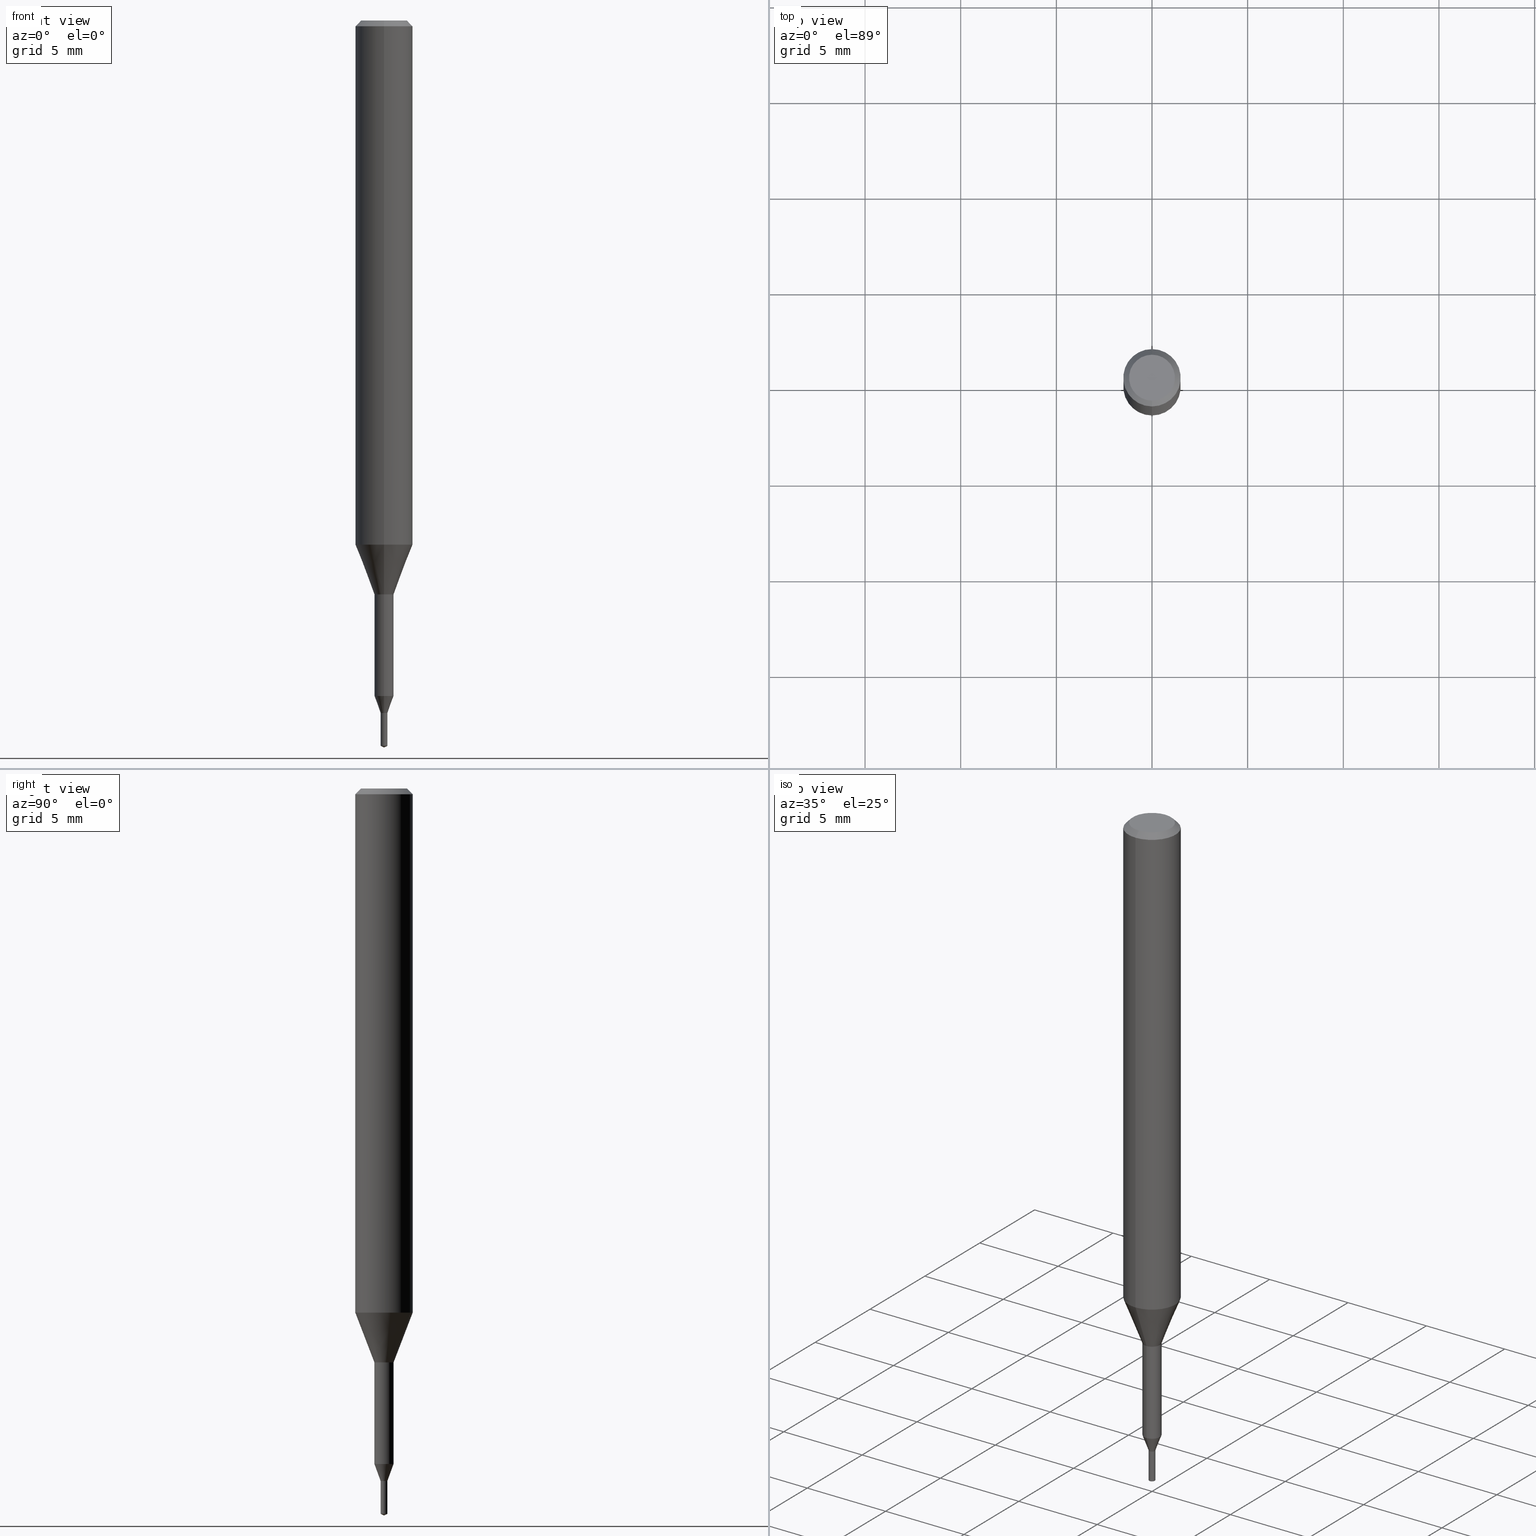
[diagram: canonical four-view strip — front | top / right | iso, engineering-drawing reading convention]
A machine part, canonical four-view strip (front | top / right | iso — engineering-drawing reading convention). The complete STEP part file that produces these views, byte-faithful:
ISO-10303-21;
HEADER;
FILE_DESCRIPTION(('no description'),'unknown implementation level');
FILE_NAME('UTDSX2035-018-Huellk.stp','  ',('CIMSOURCE GmbH'),('CADClick - KiM GmbH - www.kimweb.de'),'unknown preprocess','ACIS','unknown authorization');
FILE_SCHEMA(('automotive_design'));
ENDSEC;
DATA;
#1=MECHANICAL_DESIGN_GEOMETRIC_PRESENTATION_REPRESENTATION(' ',(#14,#15,#16,#17,#18,#19,#20,#21,#22,#23,#24,#25,#26,#27,#28,#29,#30,#31,#32,#33,#34,#35,#36,#37,#38,#39,#40,#41,#42,#43,#44,#45,#46,#47,#48,#49,#50,#51,#52,#53,#54,#55,#56,#57,#58,#59,#60,#61,#62,#63,#64,#65,#66,#67,#68,#69,#70,#71,#72,#73,#74,#75,#76,#77,#78,#79,#80,#81,#82,#83,#84,#85,#86,#87,#88,#89,#90,#91,#92),#10);
#2=PRODUCT_DEFINITION_CONTEXT('',#93,'design');
#3=APPLICATION_PROTOCOL_DEFINITION('INTERNATIONAL STANDARD','automotive_design',1994,#93);
#4=PRODUCT_CATEGORY_RELATIONSHIP('NONE','NONE',#94,#95);
#5=SHAPE_DEFINITION_REPRESENTATION(#96,#97);
#6=PRODUCT_DEFINITION_CONTEXT('',#98,'design');
#7=APPLICATION_PROTOCOL_DEFINITION('INTERNATIONAL STANDARD','automotive_design',1994,#98);
#8=PRODUCT_CATEGORY_RELATIONSHIP('NONE','NONE',#99,#100);
#9=SHAPE_DEFINITION_REPRESENTATION(#101,#102);
#10= (GEOMETRIC_REPRESENTATION_CONTEXT(3)GLOBAL_UNCERTAINTY_ASSIGNED_CONTEXT((#105))GLOBAL_UNIT_ASSIGNED_CONTEXT((#107,#108,#109))REPRESENTATION_CONTEXT('NONE','WORKSPACE'));
#14=STYLED_ITEM('',(#111),#112);
#15=STYLED_ITEM('',(#113),#114);
#16=STYLED_ITEM('',(#115),#116);
#17=STYLED_ITEM('',(#117),#118);
#18=STYLED_ITEM('',(#119),#120);
#19=STYLED_ITEM('',(#121),#122);
#20=STYLED_ITEM('',(#123),#124);
#21=STYLED_ITEM('',(#125),#126);
#22=STYLED_ITEM('',(#127),#128);
#23=STYLED_ITEM('',(#129),#130);
#24=STYLED_ITEM('',(#131),#132);
#25=STYLED_ITEM('',(#133),#134);
#26=STYLED_ITEM('',(#135),#136);
#27=STYLED_ITEM('',(#137),#138);
#28=STYLED_ITEM('',(#139),#140);
#29=STYLED_ITEM('',(#141),#142);
#30=STYLED_ITEM('',(#143),#144);
#31=STYLED_ITEM('',(#145),#146);
#32=STYLED_ITEM('',(#147),#148);
#33=STYLED_ITEM('',(#149),#150);
#34=STYLED_ITEM('',(#151),#152);
#35=STYLED_ITEM('',(#153),#154);
#36=STYLED_ITEM('',(#155),#156);
#37=STYLED_ITEM('',(#157),#158);
#38=STYLED_ITEM('',(#159),#160);
#39=STYLED_ITEM('',(#161),#162);
#40=STYLED_ITEM('',(#163),#164);
#41=STYLED_ITEM('',(#165),#166);
#42=STYLED_ITEM('',(#167),#168);
#43=STYLED_ITEM('',(#169),#170);
#44=STYLED_ITEM('',(#171),#172);
#45=STYLED_ITEM('',(#173),#174);
#46=STYLED_ITEM('',(#175),#176);
#47=STYLED_ITEM('',(#177),#178);
#48=STYLED_ITEM('',(#179),#180);
#49=STYLED_ITEM('',(#181),#182);
#50=STYLED_ITEM('',(#183),#184);
#51=STYLED_ITEM('',(#185),#186);
#52=STYLED_ITEM('',(#187),#188);
#53=STYLED_ITEM('',(#189),#190);
#54=STYLED_ITEM('',(#191),#192);
#55=STYLED_ITEM('',(#193),#194);
#56=STYLED_ITEM('',(#195),#196);
#57=STYLED_ITEM('',(#197),#198);
#58=STYLED_ITEM('',(#199),#200);
#59=STYLED_ITEM('',(#201),#202);
#60=STYLED_ITEM('',(#203),#204);
#61=STYLED_ITEM('',(#205),#206);
#62=STYLED_ITEM('',(#207),#208);
#63=STYLED_ITEM('',(#209),#210);
#64=STYLED_ITEM('',(#211),#212);
#65=STYLED_ITEM('',(#213),#214);
#66=STYLED_ITEM('',(#215),#216);
#67=STYLED_ITEM('',(#217),#218);
#68=STYLED_ITEM('',(#219),#220);
#69=STYLED_ITEM('',(#221),#222);
#70=STYLED_ITEM('',(#223),#224);
#71=STYLED_ITEM('',(#225),#226);
#72=STYLED_ITEM('',(#227),#228);
#73=STYLED_ITEM('',(#229),#230);
#74=STYLED_ITEM('',(#231),#232);
#75=STYLED_ITEM('',(#233),#234);
#76=STYLED_ITEM('',(#235),#236);
#77=STYLED_ITEM('',(#237),#238);
#78=STYLED_ITEM('',(#239),#240);
#79=STYLED_ITEM('',(#241),#242);
#80=STYLED_ITEM('',(#243),#244);
#81=STYLED_ITEM('',(#245),#246);
#82=STYLED_ITEM('',(#247),#248);
#83=STYLED_ITEM('',(#249),#250);
#84=STYLED_ITEM('',(#251),#252);
#85=STYLED_ITEM('',(#253),#254);
#86=STYLED_ITEM('',(#255),#256);
#87=STYLED_ITEM('',(#257),#258);
#88=STYLED_ITEM('',(#259),#260);
#89=STYLED_ITEM('',(#261),#262);
#90=STYLED_ITEM('',(#263),#264);
#91=STYLED_ITEM('',(#265),#266);
#92=STYLED_ITEM('',(#267),#268);
#93=APPLICATION_CONTEXT(' ');
#94=PRODUCT_CATEGORY('part','NONE');
#95=PRODUCT_RELATED_PRODUCT_CATEGORY('detail',' ',(#269));
#96=PRODUCT_DEFINITION_SHAPE('NONE','NONE',#270);
#97=ADVANCED_BREP_SHAPE_REPRESENTATION('1',(#256,#271),#10);
#98=APPLICATION_CONTEXT(' ');
#99=PRODUCT_CATEGORY('part','NONE');
#100=PRODUCT_RELATED_PRODUCT_CATEGORY('detail',' ',(#272));
#101=PRODUCT_DEFINITION_SHAPE('NONE','NONE',#273);
#102=ADVANCED_BREP_SHAPE_REPRESENTATION('2',(#160,#274),#10);
#105=UNCERTAINTY_MEASURE_WITH_UNIT(LENGTH_MEASURE(1.0E-006),#107,'','');
#107= (CONVERSION_BASED_UNIT('MILLIMETRE',#277)LENGTH_UNIT()NAMED_UNIT(#280));
#108= (NAMED_UNIT(#282)PLANE_ANGLE_UNIT()SI_UNIT($,.RADIAN.));
#109= (NAMED_UNIT(#282)SOLID_ANGLE_UNIT()SI_UNIT($,.STERADIAN.));
#111=PRESENTATION_STYLE_ASSIGNMENT((#288));
#112=ADVANCED_FACE('',(#289,#290),#291,.T.);
#113=PRESENTATION_STYLE_ASSIGNMENT((#292));
#114=VERTEX_POINT('',#293);
#115=PRESENTATION_STYLE_ASSIGNMENT((#294));
#116=ADVANCED_FACE('',(#295),#296,.T.);
#117=PRESENTATION_STYLE_ASSIGNMENT((#297));
#118=EDGE_CURVE('',#208,#142,#298,.T.);
#119=PRESENTATION_STYLE_ASSIGNMENT((#299));
#120=EDGE_CURVE('',#218,#166,#300,.T.);
#121=PRESENTATION_STYLE_ASSIGNMENT((#301));
#122=VERTEX_POINT('',#302);
#123=PRESENTATION_STYLE_ASSIGNMENT((#303));
#124=ADVANCED_FACE('',(#304),#305,.T.);
#125=PRESENTATION_STYLE_ASSIGNMENT((#306));
#126=ADVANCED_FACE('',(#307),#308,.T.);
#127=PRESENTATION_STYLE_ASSIGNMENT((#309));
#128=ADVANCED_FACE('',(#310),#311,.T.);
#129=PRESENTATION_STYLE_ASSIGNMENT((#312));
#130=EDGE_CURVE('',#178,#136,#313,.T.);
#131=PRESENTATION_STYLE_ASSIGNMENT((#314));
#132=EDGE_CURVE('',#218,#260,#315,.T.);
#133=PRESENTATION_STYLE_ASSIGNMENT((#316));
#134=EDGE_CURVE('',#258,#204,#317,.T.);
#135=PRESENTATION_STYLE_ASSIGNMENT((#318));
#136=VERTEX_POINT('',#319);
#137=PRESENTATION_STYLE_ASSIGNMENT((#320));
#138=ADVANCED_FACE('',(#321),#322,.T.);
#139=PRESENTATION_STYLE_ASSIGNMENT((#323));
#140=ADVANCED_FACE('',(#324),#325,.T.);
#141=PRESENTATION_STYLE_ASSIGNMENT((#326));
#142=VERTEX_POINT('',#327);
#143=PRESENTATION_STYLE_ASSIGNMENT((#328));
#144=EDGE_CURVE('',#150,#258,#329,.T.);
#145=PRESENTATION_STYLE_ASSIGNMENT((#330));
#146=EDGE_CURVE('',#136,#114,#331,.T.);
#147=PRESENTATION_STYLE_ASSIGNMENT((#332));
#148=EDGE_CURVE('',#166,#218,#333,.T.);
#149=PRESENTATION_STYLE_ASSIGNMENT((#334));
#150=VERTEX_POINT('',#335);
#151=PRESENTATION_STYLE_ASSIGNMENT((#336));
#152=EDGE_CURVE('',#114,#136,#337,.T.);
#153=PRESENTATION_STYLE_ASSIGNMENT((#338));
#154=ADVANCED_FACE('',(#339),#340,.T.);
#155=PRESENTATION_STYLE_ASSIGNMENT((#341));
#156=VERTEX_POINT('',#342);
#157=PRESENTATION_STYLE_ASSIGNMENT((#343));
#158=EDGE_CURVE('',#174,#244,#344,.T.);
#159=PRESENTATION_STYLE_ASSIGNMENT((#345));
#160=MANIFOLD_SOLID_BREP('2',#346);
#161=PRESENTATION_STYLE_ASSIGNMENT((#347));
#162=EDGE_CURVE('',#204,#150,#348,.T.);
#163=PRESENTATION_STYLE_ASSIGNMENT((#349));
#164=EDGE_CURVE('',#180,#202,#350,.T.);
#165=PRESENTATION_STYLE_ASSIGNMENT((#351));
#166=VERTEX_POINT('',#352);
#167=PRESENTATION_STYLE_ASSIGNMENT((#353));
#168=EDGE_CURVE('',#176,#166,#354,.T.);
#169=PRESENTATION_STYLE_ASSIGNMENT((#355));
#170=EDGE_CURVE('',#176,#260,#356,.T.);
#171=PRESENTATION_STYLE_ASSIGNMENT((#357));
#172=ADVANCED_FACE('',(#358),#359,.T.);
#173=PRESENTATION_STYLE_ASSIGNMENT((#360));
#174=VERTEX_POINT('',#361);
#175=PRESENTATION_STYLE_ASSIGNMENT((#362));
#176=VERTEX_POINT('',#363);
#177=PRESENTATION_STYLE_ASSIGNMENT((#364));
#178=VERTEX_POINT('',#365);
#179=PRESENTATION_STYLE_ASSIGNMENT((#366));
#180=VERTEX_POINT('',#367);
#181=PRESENTATION_STYLE_ASSIGNMENT((#368));
#182=ADVANCED_FACE('',(#369),#370,.T.);
#183=PRESENTATION_STYLE_ASSIGNMENT((#371));
#184=ADVANCED_FACE('',(#372),#373,.T.);
#185=PRESENTATION_STYLE_ASSIGNMENT((#374));
#186=ADVANCED_FACE('',(#375),#376,.T.);
#187=PRESENTATION_STYLE_ASSIGNMENT((#377));
#188=VERTEX_POINT('',#378);
#189=PRESENTATION_STYLE_ASSIGNMENT((#379));
#190=EDGE_CURVE('',#188,#122,#380,.T.);
#191=PRESENTATION_STYLE_ASSIGNMENT((#381));
#192=EDGE_CURVE('',#180,#188,#382,.T.);
#193=PRESENTATION_STYLE_ASSIGNMENT((#383));
#194=EDGE_CURVE('',#114,#212,#384,.T.);
#195=PRESENTATION_STYLE_ASSIGNMENT((#385));
#196=ADVANCED_FACE('',(#386),#387,.T.);
#197=PRESENTATION_STYLE_ASSIGNMENT((#388));
#198=VERTEX_POINT('',#389);
#199=PRESENTATION_STYLE_ASSIGNMENT((#390));
#200=EDGE_CURVE('',#178,#212,#391,.T.);
#201=PRESENTATION_STYLE_ASSIGNMENT((#392));
#202=VERTEX_POINT('',#393);
#203=PRESENTATION_STYLE_ASSIGNMENT((#394));
#204=VERTEX_POINT('',#395);
#205=PRESENTATION_STYLE_ASSIGNMENT((#396));
#206=EDGE_CURVE('',#244,#174,#397,.T.);
#207=PRESENTATION_STYLE_ASSIGNMENT((#398));
#208=VERTEX_POINT('',#399);
#209=PRESENTATION_STYLE_ASSIGNMENT((#400));
#210=EDGE_CURVE('',#204,#174,#401,.T.);
#211=PRESENTATION_STYLE_ASSIGNMENT((#402));
#212=VERTEX_POINT('',#403);
#213=PRESENTATION_STYLE_ASSIGNMENT((#404));
#214=ADVANCED_FACE('',(#405),#406,.T.);
#215=PRESENTATION_STYLE_ASSIGNMENT((#407));
#216=ADVANCED_FACE('',(#408),#409,.T.);
#217=PRESENTATION_STYLE_ASSIGNMENT((#410));
#218=VERTEX_POINT('',#411);
#219=PRESENTATION_STYLE_ASSIGNMENT((#412));
#220=ADVANCED_FACE('',(#413),#414,.T.);
#221=PRESENTATION_STYLE_ASSIGNMENT((#415));
#222=EDGE_CURVE('',#150,#204,#416,.T.);
#223=PRESENTATION_STYLE_ASSIGNMENT((#417));
#224=ADVANCED_FACE('',(#418),#419,.T.);
#225=PRESENTATION_STYLE_ASSIGNMENT((#420));
#226=EDGE_CURVE('',#202,#218,#421,.T.);
#227=PRESENTATION_STYLE_ASSIGNMENT((#422));
#228=EDGE_CURVE('',#260,#176,#423,.T.);
#229=PRESENTATION_STYLE_ASSIGNMENT((#424));
#230=EDGE_CURVE('',#122,#188,#425,.T.);
#231=PRESENTATION_STYLE_ASSIGNMENT((#426));
#232=EDGE_CURVE('',#198,#244,#427,.T.);
#233=PRESENTATION_STYLE_ASSIGNMENT((#428));
#234=EDGE_CURVE('',#156,#198,#429,.T.);
#235=PRESENTATION_STYLE_ASSIGNMENT((#430));
#236=EDGE_CURVE('',#142,#208,#431,.T.);
#237=PRESENTATION_STYLE_ASSIGNMENT((#432));
#238=EDGE_CURVE('',#166,#180,#433,.T.);
#239=PRESENTATION_STYLE_ASSIGNMENT((#434));
#240=ADVANCED_FACE('',(#435),#436,.T.);
#241=PRESENTATION_STYLE_ASSIGNMENT((#437));
#242=EDGE_CURVE('',#122,#202,#438,.T.);
#243=PRESENTATION_STYLE_ASSIGNMENT((#439));
#244=VERTEX_POINT('',#440);
#245=PRESENTATION_STYLE_ASSIGNMENT((#441));
#246=ADVANCED_FACE('',(#442),#443,.T.);
#247=PRESENTATION_STYLE_ASSIGNMENT((#444));
#248=EDGE_CURVE('',#244,#150,#445,.T.);
#249=PRESENTATION_STYLE_ASSIGNMENT((#446));
#250=EDGE_CURVE('',#212,#178,#447,.T.);
#251=PRESENTATION_STYLE_ASSIGNMENT((#448));
#252=EDGE_CURVE('',#198,#156,#449,.T.);
#253=PRESENTATION_STYLE_ASSIGNMENT((#450));
#254=ADVANCED_FACE('',(#451),#452,.T.);
#255=PRESENTATION_STYLE_ASSIGNMENT((#453));
#256=MANIFOLD_SOLID_BREP('1',#454);
#257=PRESENTATION_STYLE_ASSIGNMENT((#455));
#258=VERTEX_POINT('',#456);
#259=PRESENTATION_STYLE_ASSIGNMENT((#457));
#260=VERTEX_POINT('',#458);
#261=PRESENTATION_STYLE_ASSIGNMENT((#459));
#262=EDGE_CURVE('',#142,#114,#460,.T.);
#263=PRESENTATION_STYLE_ASSIGNMENT((#461));
#264=EDGE_CURVE('',#136,#208,#462,.T.);
#265=PRESENTATION_STYLE_ASSIGNMENT((#463));
#266=EDGE_CURVE('',#174,#156,#464,.T.);
#267=PRESENTATION_STYLE_ASSIGNMENT((#465));
#268=EDGE_CURVE('',#202,#180,#466,.T.);
#269=PRODUCT('1','1','PART-1-DESC',(#467));
#270=PRODUCT_DEFINITION('NONE','NONE',#468,#2);
#271=AXIS2_PLACEMENT_3D('',#469,#470,#471);
#272=PRODUCT('2','2','PART-2-DESC',(#472));
#273=PRODUCT_DEFINITION('NONE','NONE',#473,#6);
#274=AXIS2_PLACEMENT_3D('',#474,#475,#476);
#277=LENGTH_MEASURE_WITH_UNIT(LENGTH_MEASURE(1.0),#477);
#280=DIMENSIONAL_EXPONENTS(1.0,0.0,0.0,0.0,0.0,0.0,0.0);
#282=DIMENSIONAL_EXPONENTS(0.0,0.0,0.0,0.0,0.0,0.0,0.0);
#288=SURFACE_STYLE_USAGE(.BOTH.,#478);
#289=FACE_BOUND('',#479,.T.);
#290=FACE_OUTER_BOUND('',#480,.T.);
#291=PLANE('',#481);
#292=POINT_STYLE(' ',#482,POSITIVE_LENGTH_MEASURE(1.0E-006),#483);
#293=CARTESIAN_POINT('',(6.12241946593498E-017,-0.49995,-35.307));
#294=SURFACE_STYLE_USAGE(.BOTH.,#484);
#295=FACE_OUTER_BOUND('',#485,.T.);
#296=CYLINDRICAL_SURFACE('',#486,1.5);
#297=CURVE_STYLE('',#487,POSITIVE_LENGTH_MEASURE(1.0E-006),#488);
#298=CIRCLE('',#489,0.175036388577827);
#299=CURVE_STYLE('',#490,POSITIVE_LENGTH_MEASURE(1.0E-006),#491);
#300=CIRCLE('',#492,1.5);
#301=POINT_STYLE(' ',#493,POSITIVE_LENGTH_MEASURE(1.0E-006),#494);
#302=CARTESIAN_POINT('',(6.12303176911189E-017,-0.5,-30.0));
#303=SURFACE_STYLE_USAGE(.BOTH.,#495);
#304=FACE_OUTER_BOUND('',#496,.T.);
#305=CONICAL_SURFACE('',#497,1.35,0.785398163397447);
#306=SURFACE_STYLE_USAGE(.BOTH.,#498);
#307=FACE_OUTER_BOUND('',#499,.T.);
#308=CONICAL_SURFACE('',#500,0.175518197088466,1.47460571642069);
#309=SURFACE_STYLE_USAGE(.BOTH.,#501);
#310=FACE_OUTER_BOUND('',#502,.T.);
#311=CYLINDRICAL_SURFACE('',#503,0.175);
#312=CURVE_STYLE('',#504,POSITIVE_LENGTH_MEASURE(1.0E-006),#505);
#313=LINE('',#506,#507);
#314=CURVE_STYLE('',#508,POSITIVE_LENGTH_MEASURE(1.0E-006),#509);
#315=LINE('',#510,#511);
#316=CURVE_STYLE('',#512,POSITIVE_LENGTH_MEASURE(1.0E-006),#513);
#317=LINE('',#514,#515);
#318=POINT_STYLE(' ',#516,POSITIVE_LENGTH_MEASURE(1.0E-006),#517);
#319=CARTESIAN_POINT('',(0.0,0.49995,-35.307));
#320=SURFACE_STYLE_USAGE(.BOTH.,#518);
#321=FACE_OUTER_BOUND('',#519,.T.);
#322=CONICAL_SURFACE('',#520,0.0875,1.13446401462768);
#323=SURFACE_STYLE_USAGE(.BOTH.,#521);
#324=FACE_OUTER_BOUND('',#522,.T.);
#325=CYLINDRICAL_SURFACE('',#523,0.49995);
#326=POINT_STYLE(' ',#524,POSITIVE_LENGTH_MEASURE(1.0E-006),#525);
#327=CARTESIAN_POINT('',(2.1435067360253E-017,-0.175036388577827,-36.1999));
#328=CURVE_STYLE('',#526,POSITIVE_LENGTH_MEASURE(1.0E-006),#527);
#329=LINE('',#528,#529);
#330=CURVE_STYLE('',#530,POSITIVE_LENGTH_MEASURE(1.0E-006),#531);
#331=CIRCLE('',#532,0.49995);
#332=CURVE_STYLE('',#533,POSITIVE_LENGTH_MEASURE(1.0E-006),#534);
#333=CIRCLE('',#535,1.5);
#334=POINT_STYLE(' ',#536,POSITIVE_LENGTH_MEASURE(1.0E-006),#537);
#335=CARTESIAN_POINT('',(-0.175,0.0,-37.91839616));
#336=CURVE_STYLE('',#538,POSITIVE_LENGTH_MEASURE(1.0E-006),#539);
#337=CIRCLE('',#540,0.49995);
#338=SURFACE_STYLE_USAGE(.BOTH.,#541);
#339=FACE_OUTER_BOUND('',#542,.T.);
#340=PLANE('',#543);
#341=POINT_STYLE(' ',#544,POSITIVE_LENGTH_MEASURE(1.0E-006),#545);
#342=CARTESIAN_POINT('',(0.176036394176932,2.15575286813051E-017,-36.1999));
#343=CURVE_STYLE('',#546,POSITIVE_LENGTH_MEASURE(1.0E-006),#547);
#344=CIRCLE('',#548,0.175);
#345=SURFACE_STYLE_USAGE(.BOTH.,#549);
#346=CLOSED_SHELL('',(#138,#246,#196,#172,#126,#128,#220));
#347=CURVE_STYLE('',#550,POSITIVE_LENGTH_MEASURE(1.0E-006),#551);
#348=CIRCLE('',#552,0.175);
#349=CURVE_STYLE('',#553,POSITIVE_LENGTH_MEASURE(1.0E-006),#554);
#350=CIRCLE('',#555,1.5);
#351=POINT_STYLE(' ',#556,POSITIVE_LENGTH_MEASURE(1.0E-006),#557);
#352=CARTESIAN_POINT('',(0.0,1.5,-0.300000000000001));
#353=CURVE_STYLE('',#558,POSITIVE_LENGTH_MEASURE(1.0E-006),#559);
#354=LINE('',#560,#561);
#355=CURVE_STYLE('',#562,POSITIVE_LENGTH_MEASURE(1.0E-006),#563);
#356=CIRCLE('',#564,1.2);
#357=SURFACE_STYLE_USAGE(.BOTH.,#565);
#358=FACE_OUTER_BOUND('',#566,.T.);
#359=PLANE('',#567);
#360=POINT_STYLE(' ',#568,POSITIVE_LENGTH_MEASURE(1.0E-006),#569);
#361=CARTESIAN_POINT('',(0.175,2.14306111918916E-017,-36.2));
#362=POINT_STYLE(' ',#570,POSITIVE_LENGTH_MEASURE(1.0E-006),#571);
#363=CARTESIAN_POINT('',(0.0,1.2,0.0));
#364=POINT_STYLE(' ',#572,POSITIVE_LENGTH_MEASURE(1.0E-006),#573);
#365=CARTESIAN_POINT('',(0.0,0.49995,-30.0));
#366=POINT_STYLE(' ',#574,POSITIVE_LENGTH_MEASURE(1.0E-006),#575);
#367=CARTESIAN_POINT('',(0.0,1.5,-27.395));
#368=SURFACE_STYLE_USAGE(.BOTH.,#576);
#369=FACE_OUTER_BOUND('',#577,.T.);
#370=CONICAL_SURFACE('',#578,0.337493194288914,0.348991271858117);
#371=SURFACE_STYLE_USAGE(.BOTH.,#579);
#372=FACE_OUTER_BOUND('',#580,.T.);
#373=CONICAL_SURFACE('',#581,1.35,0.785398163397447);
#374=SURFACE_STYLE_USAGE(.BOTH.,#582);
#375=FACE_OUTER_BOUND('',#583,.T.);
#376=CONICAL_SURFACE('',#584,0.337493194288914,0.348991271858117);
#377=POINT_STYLE(' ',#585,POSITIVE_LENGTH_MEASURE(1.0E-006),#586);
#378=CARTESIAN_POINT('',(0.0,0.5,-30.0));
#379=CURVE_STYLE('',#587,POSITIVE_LENGTH_MEASURE(1.0E-006),#588);
#380=CIRCLE('',#589,0.5);
#381=CURVE_STYLE('',#590,POSITIVE_LENGTH_MEASURE(1.0E-006),#591);
#382=LINE('',#592,#593);
#383=CURVE_STYLE('',#594,POSITIVE_LENGTH_MEASURE(1.0E-006),#595);
#384=LINE('',#596,#597);
#385=SURFACE_STYLE_USAGE(.BOTH.,#598);
#386=FACE_OUTER_BOUND('',#599,.T.);
#387=CONICAL_SURFACE('',#600,0.175518197088466,1.47460571642069);
#388=POINT_STYLE(' ',#601,POSITIVE_LENGTH_MEASURE(1.0E-006),#602);
#389=CARTESIAN_POINT('',(-0.176036394176932,0.0,-36.1999));
#390=CURVE_STYLE('',#603,POSITIVE_LENGTH_MEASURE(1.0E-006),#604);
#391=CIRCLE('',#605,0.49995);
#392=POINT_STYLE(' ',#606,POSITIVE_LENGTH_MEASURE(1.0E-006),#607);
#393=CARTESIAN_POINT('',(1.83690953073357E-016,-1.5,-27.395));
#394=POINT_STYLE(' ',#608,POSITIVE_LENGTH_MEASURE(1.0E-006),#609);
#395=CARTESIAN_POINT('',(0.175,2.14306111918916E-017,-37.91839616));
#396=CURVE_STYLE('',#610,POSITIVE_LENGTH_MEASURE(1.0E-006),#611);
#397=CIRCLE('',#612,0.175);
#398=POINT_STYLE(' ',#613,POSITIVE_LENGTH_MEASURE(1.0E-006),#614);
#399=CARTESIAN_POINT('',(0.0,0.175036388577827,-36.1999));
#400=CURVE_STYLE('',#615,POSITIVE_LENGTH_MEASURE(1.0E-006),#616);
#401=LINE('',#617,#618);
#402=POINT_STYLE(' ',#619,POSITIVE_LENGTH_MEASURE(1.0E-006),#620);
#403=CARTESIAN_POINT('',(6.12241946593498E-017,-0.49995,-30.0));
#404=SURFACE_STYLE_USAGE(.BOTH.,#621);
#405=FACE_OUTER_BOUND('',#622,.T.);
#406=CYLINDRICAL_SURFACE('',#623,0.49995);
#407=SURFACE_STYLE_USAGE(.BOTH.,#624);
#408=FACE_OUTER_BOUND('',#625,.T.);
#409=CONICAL_SURFACE('',#626,1.0,0.366530581623394);
#410=POINT_STYLE(' ',#627,POSITIVE_LENGTH_MEASURE(1.0E-006),#628);
#411=CARTESIAN_POINT('',(1.83690953073357E-016,-1.5,-0.300000000000001));
#412=SURFACE_STYLE_USAGE(.BOTH.,#629);
#413=FACE_OUTER_BOUND('',#630,.T.);
#414=CONICAL_SURFACE('',#631,0.0875,1.13446401462768);
#415=CURVE_STYLE('',#632,POSITIVE_LENGTH_MEASURE(1.0E-006),#633);
#416=CIRCLE('',#634,0.175);
#417=SURFACE_STYLE_USAGE(.BOTH.,#635);
#418=FACE_OUTER_BOUND('',#636,.T.);
#419=CYLINDRICAL_SURFACE('',#637,1.5);
#420=CURVE_STYLE('',#638,POSITIVE_LENGTH_MEASURE(1.0E-006),#639);
#421=LINE('',#640,#641);
#422=CURVE_STYLE('',#642,POSITIVE_LENGTH_MEASURE(1.0E-006),#643);
#423=CIRCLE('',#644,1.2);
#424=CURVE_STYLE('',#645,POSITIVE_LENGTH_MEASURE(1.0E-006),#646);
#425=CIRCLE('',#647,0.5);
#426=CURVE_STYLE('',#648,POSITIVE_LENGTH_MEASURE(1.0E-006),#649);
#427=LINE('',#650,#651);
#428=CURVE_STYLE('',#652,POSITIVE_LENGTH_MEASURE(1.0E-006),#653);
#429=CIRCLE('',#654,0.176036394176932);
#430=CURVE_STYLE('',#655,POSITIVE_LENGTH_MEASURE(1.0E-006),#656);
#431=CIRCLE('',#657,0.175036388577827);
#432=CURVE_STYLE('',#658,POSITIVE_LENGTH_MEASURE(1.0E-006),#659);
#433=LINE('',#660,#661);
#434=SURFACE_STYLE_USAGE(.BOTH.,#662);
#435=FACE_OUTER_BOUND('',#663,.T.);
#436=CONICAL_SURFACE('',#664,1.0,0.366530581623394);
#437=CURVE_STYLE('',#665,POSITIVE_LENGTH_MEASURE(1.0E-006),#666);
#438=LINE('',#667,#668);
#439=POINT_STYLE(' ',#669,POSITIVE_LENGTH_MEASURE(1.0E-006),#670);
#440=CARTESIAN_POINT('',(-0.175,0.0,-36.2));
#441=SURFACE_STYLE_USAGE(.BOTH.,#671);
#442=FACE_OUTER_BOUND('',#672,.T.);
#443=CYLINDRICAL_SURFACE('',#673,0.175);
#444=CURVE_STYLE('',#674,POSITIVE_LENGTH_MEASURE(1.0E-006),#675);
#445=LINE('',#676,#677);
#446=CURVE_STYLE('',#678,POSITIVE_LENGTH_MEASURE(1.0E-006),#679);
#447=CIRCLE('',#680,0.49995);
#448=CURVE_STYLE('',#681,POSITIVE_LENGTH_MEASURE(1.0E-006),#682);
#449=CIRCLE('',#683,0.176036394176932);
#450=SURFACE_STYLE_USAGE(.BOTH.,#684);
#451=FACE_OUTER_BOUND('',#685,.T.);
#452=PLANE('',#686);
#453=SURFACE_STYLE_USAGE(.BOTH.,#687);
#454=CLOSED_SHELL('',(#182,#140,#216,#116,#184,#254,#124,#224,#240,#112,#214,#186,#154));
#455=POINT_STYLE(' ',#688,POSITIVE_LENGTH_MEASURE(1.0E-006),#689);
#456=CARTESIAN_POINT('',(0.0,0.0,-38.0));
#457=POINT_STYLE(' ',#690,POSITIVE_LENGTH_MEASURE(1.0E-006),#691);
#458=CARTESIAN_POINT('',(1.46952762458685E-016,-1.2,0.0));
#459=CURVE_STYLE('',#692,POSITIVE_LENGTH_MEASURE(1.0E-006),#693);
#460=LINE('',#694,#695);
#461=CURVE_STYLE('',#696,POSITIVE_LENGTH_MEASURE(1.0E-006),#697);
#462=LINE('',#698,#699);
#463=CURVE_STYLE('',#700,POSITIVE_LENGTH_MEASURE(1.0E-006),#701);
#464=LINE('',#702,#703);
#465=CURVE_STYLE('',#704,POSITIVE_LENGTH_MEASURE(1.0E-006),#705);
#466=CIRCLE('',#706,1.5);
#467=PRODUCT_CONTEXT('',#93,'mechanical');
#468=PRODUCT_DEFINITION_FORMATION_WITH_SPECIFIED_SOURCE(' ','NONE',#269,.NOT_KNOWN.);
#469=CARTESIAN_POINT('',(0.0,0.0,0.0));
#470=DIRECTION('',(0.0,0.0,1.0));
#471=DIRECTION('',(1.0,0.0,0.0));
#472=PRODUCT_CONTEXT('',#98,'mechanical');
#473=PRODUCT_DEFINITION_FORMATION_WITH_SPECIFIED_SOURCE(' ','NONE',#272,.NOT_KNOWN.);
#474=CARTESIAN_POINT('',(0.0,0.0,0.0));
#475=DIRECTION('',(0.0,0.0,1.0));
#476=DIRECTION('',(1.0,0.0,0.0));
#477= (NAMED_UNIT(#280)LENGTH_UNIT()SI_UNIT(.MILLI.,.METRE.));
#478=SURFACE_SIDE_STYLE('',(#708));
#479=EDGE_LOOP('',(#709,#710));
#480=EDGE_LOOP('',(#711,#712));
#481=AXIS2_PLACEMENT_3D('',#713,#714,#715);
#482=PRE_DEFINED_MARKER('');
#483=COLOUR_RGB('',0.498039215803146,0.498039215803146,0.498039215803146);
#484=SURFACE_SIDE_STYLE('',(#716));
#485=EDGE_LOOP('',(#717,#718,#719,#720));
#486=AXIS2_PLACEMENT_3D('',#721,#722,#723);
#487=DRAUGHTING_PRE_DEFINED_CURVE_FONT('continuous');
#488=COLOUR_RGB('',0.498039215803146,0.498039215803146,0.498039215803146);
#489=AXIS2_PLACEMENT_3D('',#724,#725,#726);
#490=DRAUGHTING_PRE_DEFINED_CURVE_FONT('continuous');
#491=COLOUR_RGB('',0.498039215803146,0.498039215803146,0.498039215803146);
#492=AXIS2_PLACEMENT_3D('',#727,#728,#729);
#493=PRE_DEFINED_MARKER('');
#494=COLOUR_RGB('',0.498039215803146,0.498039215803146,0.498039215803146);
#495=SURFACE_SIDE_STYLE('',(#730));
#496=EDGE_LOOP('',(#731,#732,#733,#734));
#497=AXIS2_PLACEMENT_3D('',#735,#736,#737);
#498=SURFACE_SIDE_STYLE('',(#738));
#499=EDGE_LOOP('',(#739,#740,#741,#742));
#500=AXIS2_PLACEMENT_3D('',#743,#744,#745);
#501=SURFACE_SIDE_STYLE('',(#746));
#502=EDGE_LOOP('',(#747,#748,#749,#750));
#503=AXIS2_PLACEMENT_3D('',#751,#752,#753);
#504=DRAUGHTING_PRE_DEFINED_CURVE_FONT('continuous');
#505=COLOUR_RGB('',0.498039215803146,0.498039215803146,0.498039215803146);
#506=CARTESIAN_POINT('',(-6.12241946593498E-017,0.49995,-32.6535));
#507=VECTOR('',#754,1.0);
#508=DRAUGHTING_PRE_DEFINED_CURVE_FONT('continuous');
#509=COLOUR_RGB('',0.498039215803146,0.498039215803146,0.498039215803146);
#510=CARTESIAN_POINT('',(1.65321857766021E-016,-1.35,-0.150000000000002));
#511=VECTOR('',#755,1.0);
#512=DRAUGHTING_PRE_DEFINED_CURVE_FONT('continuous');
#513=COLOUR_RGB('',0.800000011920929,0.800000011920929,0.800000011920929);
#514=CARTESIAN_POINT('',(0.0875,1.07153055959458E-017,-37.95919808));
#515=VECTOR('',#756,1.0);
#516=PRE_DEFINED_MARKER('');
#517=COLOUR_RGB('',0.498039215803146,0.498039215803146,0.498039215803146);
#518=SURFACE_SIDE_STYLE('',(#757));
#519=EDGE_LOOP('',(#758,#759,#760));
#520=AXIS2_PLACEMENT_3D('',#761,#762,#763);
#521=SURFACE_SIDE_STYLE('',(#764));
#522=EDGE_LOOP('',(#765,#766,#767,#768));
#523=AXIS2_PLACEMENT_3D('',#769,#770,#771);
#524=PRE_DEFINED_MARKER('');
#525=COLOUR_RGB('',0.498039215803146,0.498039215803146,0.498039215803146);
#526=DRAUGHTING_PRE_DEFINED_CURVE_FONT('continuous');
#527=COLOUR_RGB('',0.800000011920929,0.800000011920929,0.800000011920929);
#528=CARTESIAN_POINT('',(-0.0875,-1.07153055959458E-017,-37.95919808));
#529=VECTOR('',#772,1.0);
#530=DRAUGHTING_PRE_DEFINED_CURVE_FONT('continuous');
#531=COLOUR_RGB('',0.498039215803146,0.498039215803146,0.498039215803146);
#532=AXIS2_PLACEMENT_3D('',#773,#774,#775);
#533=DRAUGHTING_PRE_DEFINED_CURVE_FONT('continuous');
#534=COLOUR_RGB('',0.498039215803146,0.498039215803146,0.498039215803146);
#535=AXIS2_PLACEMENT_3D('',#776,#777,#778);
#536=PRE_DEFINED_MARKER('');
#537=COLOUR_RGB('',0.800000011920929,0.800000011920929,0.800000011920929);
#538=DRAUGHTING_PRE_DEFINED_CURVE_FONT('continuous');
#539=COLOUR_RGB('',0.498039215803146,0.498039215803146,0.498039215803146);
#540=AXIS2_PLACEMENT_3D('',#779,#780,#781);
#541=SURFACE_SIDE_STYLE('',(#782));
#542=EDGE_LOOP('',(#783,#784));
#543=AXIS2_PLACEMENT_3D('',#785,#786,#787);
#544=PRE_DEFINED_MARKER('');
#545=COLOUR_RGB('',0.800000011920929,0.800000011920929,0.800000011920929);
#546=DRAUGHTING_PRE_DEFINED_CURVE_FONT('continuous');
#547=COLOUR_RGB('',0.800000011920929,0.800000011920929,0.800000011920929);
#548=AXIS2_PLACEMENT_3D('',#788,#789,#790);
#549=SURFACE_SIDE_STYLE('',(#791));
#550=DRAUGHTING_PRE_DEFINED_CURVE_FONT('continuous');
#551=COLOUR_RGB('',0.800000011920929,0.800000011920929,0.800000011920929);
#552=AXIS2_PLACEMENT_3D('',#792,#793,#794);
#553=DRAUGHTING_PRE_DEFINED_CURVE_FONT('continuous');
#554=COLOUR_RGB('',0.498039215803146,0.498039215803146,0.498039215803146);
#555=AXIS2_PLACEMENT_3D('',#795,#796,#797);
#556=PRE_DEFINED_MARKER('');
#557=COLOUR_RGB('',0.498039215803146,0.498039215803146,0.498039215803146);
#558=DRAUGHTING_PRE_DEFINED_CURVE_FONT('continuous');
#559=COLOUR_RGB('',0.498039215803146,0.498039215803146,0.498039215803146);
#560=CARTESIAN_POINT('',(-1.65321857766021E-016,1.35,-0.150000000000002));
#561=VECTOR('',#798,1.0);
#562=DRAUGHTING_PRE_DEFINED_CURVE_FONT('continuous');
#563=COLOUR_RGB('',0.498039215803146,0.498039215803146,0.498039215803146);
#564=AXIS2_PLACEMENT_3D('',#799,#800,#801);
#565=SURFACE_SIDE_STYLE('',(#802));
#566=EDGE_LOOP('',(#803,#804));
#567=AXIS2_PLACEMENT_3D('',#805,#806,#807);
#568=PRE_DEFINED_MARKER('');
#569=COLOUR_RGB('',0.800000011920929,0.800000011920929,0.800000011920929);
#570=PRE_DEFINED_MARKER('');
#571=COLOUR_RGB('',0.498039215803146,0.498039215803146,0.498039215803146);
#572=PRE_DEFINED_MARKER('');
#573=COLOUR_RGB('',0.498039215803146,0.498039215803146,0.498039215803146);
#574=PRE_DEFINED_MARKER('');
#575=COLOUR_RGB('',0.498039215803146,0.498039215803146,0.498039215803146);
#576=SURFACE_SIDE_STYLE('',(#808));
#577=EDGE_LOOP('',(#809,#810,#811,#812));
#578=AXIS2_PLACEMENT_3D('',#813,#814,#815);
#579=SURFACE_SIDE_STYLE('',(#816));
#580=EDGE_LOOP('',(#817,#818,#819,#820));
#581=AXIS2_PLACEMENT_3D('',#821,#822,#823);
#582=SURFACE_SIDE_STYLE('',(#824));
#583=EDGE_LOOP('',(#825,#826,#827,#828));
#584=AXIS2_PLACEMENT_3D('',#829,#830,#831);
#585=PRE_DEFINED_MARKER('');
#586=COLOUR_RGB('',0.498039215803146,0.498039215803146,0.498039215803146);
#587=DRAUGHTING_PRE_DEFINED_CURVE_FONT('continuous');
#588=COLOUR_RGB('',0.498039215803146,0.498039215803146,0.498039215803146);
#589=AXIS2_PLACEMENT_3D('',#832,#833,#834);
#590=DRAUGHTING_PRE_DEFINED_CURVE_FONT('continuous');
#591=COLOUR_RGB('',0.498039215803146,0.498039215803146,0.498039215803146);
#592=CARTESIAN_POINT('',(-1.22460635382238E-016,1.0,-28.6975));
#593=VECTOR('',#835,1.0);
#594=DRAUGHTING_PRE_DEFINED_CURVE_FONT('continuous');
#595=COLOUR_RGB('',0.498039215803146,0.498039215803146,0.498039215803146);
#596=CARTESIAN_POINT('',(6.12241946593498E-017,-0.49995,-32.6535));
#597=VECTOR('',#836,1.0);
#598=SURFACE_SIDE_STYLE('',(#837));
#599=EDGE_LOOP('',(#838,#839,#840,#841));
#600=AXIS2_PLACEMENT_3D('',#842,#843,#844);
#601=PRE_DEFINED_MARKER('');
#602=COLOUR_RGB('',0.800000011920929,0.800000011920929,0.800000011920929);
#603=DRAUGHTING_PRE_DEFINED_CURVE_FONT('continuous');
#604=COLOUR_RGB('',0.498039215803146,0.498039215803146,0.498039215803146);
#605=AXIS2_PLACEMENT_3D('',#845,#846,#847);
#606=PRE_DEFINED_MARKER('');
#607=COLOUR_RGB('',0.498039215803146,0.498039215803146,0.498039215803146);
#608=PRE_DEFINED_MARKER('');
#609=COLOUR_RGB('',0.800000011920929,0.800000011920929,0.800000011920929);
#610=DRAUGHTING_PRE_DEFINED_CURVE_FONT('continuous');
#611=COLOUR_RGB('',0.800000011920929,0.800000011920929,0.800000011920929);
#612=AXIS2_PLACEMENT_3D('',#848,#849,#850);
#613=PRE_DEFINED_MARKER('');
#614=COLOUR_RGB('',0.498039215803146,0.498039215803146,0.498039215803146);
#615=DRAUGHTING_PRE_DEFINED_CURVE_FONT('continuous');
#616=COLOUR_RGB('',0.800000011920929,0.800000011920929,0.800000011920929);
#617=CARTESIAN_POINT('',(0.175,2.14306111918916E-017,-37.05919808));
#618=VECTOR('',#851,1.0);
#619=PRE_DEFINED_MARKER('');
#620=COLOUR_RGB('',0.498039215803146,0.498039215803146,0.498039215803146);
#621=SURFACE_SIDE_STYLE('',(#852));
#622=EDGE_LOOP('',(#853,#854,#855,#856));
#623=AXIS2_PLACEMENT_3D('',#857,#858,#859);
#624=SURFACE_SIDE_STYLE('',(#860));
#625=EDGE_LOOP('',(#861,#862,#863,#864));
#626=AXIS2_PLACEMENT_3D('',#865,#866,#867);
#627=PRE_DEFINED_MARKER('');
#628=COLOUR_RGB('',0.498039215803146,0.498039215803146,0.498039215803146);
#629=SURFACE_SIDE_STYLE('',(#868));
#630=EDGE_LOOP('',(#869,#870,#871));
#631=AXIS2_PLACEMENT_3D('',#872,#873,#874);
#632=DRAUGHTING_PRE_DEFINED_CURVE_FONT('continuous');
#633=COLOUR_RGB('',0.800000011920929,0.800000011920929,0.800000011920929);
#634=AXIS2_PLACEMENT_3D('',#875,#876,#877);
#635=SURFACE_SIDE_STYLE('',(#878));
#636=EDGE_LOOP('',(#879,#880,#881,#882));
#637=AXIS2_PLACEMENT_3D('',#883,#884,#885);
#638=DRAUGHTING_PRE_DEFINED_CURVE_FONT('continuous');
#639=COLOUR_RGB('',0.498039215803146,0.498039215803146,0.498039215803146);
#640=CARTESIAN_POINT('',(1.83690953073357E-016,-1.5,-13.8475));
#641=VECTOR('',#886,1.0);
#642=DRAUGHTING_PRE_DEFINED_CURVE_FONT('continuous');
#643=COLOUR_RGB('',0.498039215803146,0.498039215803146,0.498039215803146);
#644=AXIS2_PLACEMENT_3D('',#887,#888,#889);
#645=DRAUGHTING_PRE_DEFINED_CURVE_FONT('continuous');
#646=COLOUR_RGB('',0.498039215803146,0.498039215803146,0.498039215803146);
#647=AXIS2_PLACEMENT_3D('',#890,#891,#892);
#648=DRAUGHTING_PRE_DEFINED_CURVE_FONT('continuous');
#649=COLOUR_RGB('',0.800000011920929,0.800000011920929,0.800000011920929);
#650=CARTESIAN_POINT('',(-0.175518197088466,-2.14940699365983E-017,-36.19995));
#651=VECTOR('',#893,1.0);
#652=DRAUGHTING_PRE_DEFINED_CURVE_FONT('continuous');
#653=COLOUR_RGB('',0.800000011920929,0.800000011920929,0.800000011920929);
#654=AXIS2_PLACEMENT_3D('',#894,#895,#896);
#655=DRAUGHTING_PRE_DEFINED_CURVE_FONT('continuous');
#656=COLOUR_RGB('',0.498039215803146,0.498039215803146,0.498039215803146);
#657=AXIS2_PLACEMENT_3D('',#897,#898,#899);
#658=DRAUGHTING_PRE_DEFINED_CURVE_FONT('continuous');
#659=COLOUR_RGB('',0.498039215803146,0.498039215803146,0.498039215803146);
#660=CARTESIAN_POINT('',(-1.83690953073357E-016,1.5,-13.8475));
#661=VECTOR('',#900,1.0);
#662=SURFACE_SIDE_STYLE('',(#901));
#663=EDGE_LOOP('',(#902,#903,#904,#905));
#664=AXIS2_PLACEMENT_3D('',#906,#907,#908);
#665=DRAUGHTING_PRE_DEFINED_CURVE_FONT('continuous');
#666=COLOUR_RGB('',0.498039215803146,0.498039215803146,0.498039215803146);
#667=CARTESIAN_POINT('',(1.22460635382238E-016,-1.0,-28.6975));
#668=VECTOR('',#909,1.0);
#669=PRE_DEFINED_MARKER('');
#670=COLOUR_RGB('',0.800000011920929,0.800000011920929,0.800000011920929);
#671=SURFACE_SIDE_STYLE('',(#910));
#672=EDGE_LOOP('',(#911,#912,#913,#914));
#673=AXIS2_PLACEMENT_3D('',#915,#916,#917);
#674=DRAUGHTING_PRE_DEFINED_CURVE_FONT('continuous');
#675=COLOUR_RGB('',0.800000011920929,0.800000011920929,0.800000011920929);
#676=CARTESIAN_POINT('',(-0.175,-2.14306111918916E-017,-37.05919808));
#677=VECTOR('',#918,1.0);
#678=DRAUGHTING_PRE_DEFINED_CURVE_FONT('continuous');
#679=COLOUR_RGB('',0.498039215803146,0.498039215803146,0.498039215803146);
#680=AXIS2_PLACEMENT_3D('',#919,#920,#921);
#681=DRAUGHTING_PRE_DEFINED_CURVE_FONT('continuous');
#682=COLOUR_RGB('',0.800000011920929,0.800000011920929,0.800000011920929);
#683=AXIS2_PLACEMENT_3D('',#922,#923,#924);
#684=SURFACE_SIDE_STYLE('',(#925));
#685=EDGE_LOOP('',(#926,#927));
#686=AXIS2_PLACEMENT_3D('',#928,#929,#930);
#687=SURFACE_SIDE_STYLE('',(#931));
#688=PRE_DEFINED_MARKER('');
#689=COLOUR_RGB('',0.800000011920929,0.800000011920929,0.800000011920929);
#690=PRE_DEFINED_MARKER('');
#691=COLOUR_RGB('',0.498039215803146,0.498039215803146,0.498039215803146);
#692=DRAUGHTING_PRE_DEFINED_CURVE_FONT('continuous');
#693=COLOUR_RGB('',0.498039215803146,0.498039215803146,0.498039215803146);
#694=CARTESIAN_POINT('',(4.13296310098014E-017,-0.337493194288914,-35.75345));
#695=VECTOR('',#932,1.0);
#696=DRAUGHTING_PRE_DEFINED_CURVE_FONT('continuous');
#697=COLOUR_RGB('',0.498039215803146,0.498039215803146,0.498039215803146);
#698=CARTESIAN_POINT('',(-4.13296310098014E-017,0.337493194288914,-35.75345));
#699=VECTOR('',#933,1.0);
#700=DRAUGHTING_PRE_DEFINED_CURVE_FONT('continuous');
#701=COLOUR_RGB('',0.800000011920929,0.800000011920929,0.800000011920929);
#702=CARTESIAN_POINT('',(0.175518197088466,2.14940699365983E-017,-36.19995));
#703=VECTOR('',#934,1.0);
#704=DRAUGHTING_PRE_DEFINED_CURVE_FONT('continuous');
#705=COLOUR_RGB('',0.498039215803146,0.498039215803146,0.498039215803146);
#706=AXIS2_PLACEMENT_3D('',#935,#936,#937);
#708=SURFACE_STYLE_FILL_AREA(#938);
#709=ORIENTED_EDGE('',*,*,#200,.F.);
#710=ORIENTED_EDGE('',*,*,#250,.F.);
#711=ORIENTED_EDGE('',*,*,#190,.T.);
#712=ORIENTED_EDGE('',*,*,#230,.T.);
#713=CARTESIAN_POINT('',(0.0,0.499975,-30.0));
#714=DIRECTION('',(0.0,0.0,-1.0));
#715=DIRECTION('',(0.0,1.0,0.0));
#716=SURFACE_STYLE_FILL_AREA(#939);
#717=ORIENTED_EDGE('',*,*,#238,.F.);
#718=ORIENTED_EDGE('',*,*,#148,.T.);
#719=ORIENTED_EDGE('',*,*,#226,.F.);
#720=ORIENTED_EDGE('',*,*,#164,.F.);
#721=CARTESIAN_POINT('',(0.0,0.0,-13.8475));
#722=DIRECTION('',(-0.0,-0.0,1.0));
#723=DIRECTION('',(0.0,1.0,0.0));
#724=CARTESIAN_POINT('',(0.0,0.0,-36.1999));
#725=DIRECTION('',(0.0,0.0,-1.0));
#726=DIRECTION('',(0.0,1.0,0.0));
#727=CARTESIAN_POINT('',(0.0,0.0,-0.300000000000001));
#728=DIRECTION('',(0.0,0.0,-1.0));
#729=DIRECTION('',(0.0,1.0,0.0));
#730=SURFACE_STYLE_FILL_AREA(#940);
#731=ORIENTED_EDGE('',*,*,#168,.T.);
#732=ORIENTED_EDGE('',*,*,#120,.F.);
#733=ORIENTED_EDGE('',*,*,#132,.T.);
#734=ORIENTED_EDGE('',*,*,#228,.T.);
#735=CARTESIAN_POINT('',(0.0,0.0,-0.150000000000002));
#736=DIRECTION('',(0.0,-0.0,-1.0));
#737=DIRECTION('',(0.0,1.0,0.0));
#738=SURFACE_STYLE_FILL_AREA(#941);
#739=ORIENTED_EDGE('',*,*,#232,.T.);
#740=ORIENTED_EDGE('',*,*,#158,.F.);
#741=ORIENTED_EDGE('',*,*,#266,.T.);
#742=ORIENTED_EDGE('',*,*,#234,.T.);
#743=CARTESIAN_POINT('',(0.0,0.0,-36.19995));
#744=DIRECTION('',(-0.0,-0.0,1.0));
#745=DIRECTION('',(-1.0,0.0,0.0));
#746=SURFACE_STYLE_FILL_AREA(#942);
#747=ORIENTED_EDGE('',*,*,#248,.T.);
#748=ORIENTED_EDGE('',*,*,#162,.F.);
#749=ORIENTED_EDGE('',*,*,#210,.T.);
#750=ORIENTED_EDGE('',*,*,#158,.T.);
#751=CARTESIAN_POINT('',(0.0,0.0,-37.05919808));
#752=DIRECTION('',(-0.0,-0.0,1.0));
#753=DIRECTION('',(-1.0,0.0,0.0));
#754=DIRECTION('',(0.0,0.0,-1.0));
#755=DIRECTION('',(-8.65927457071934E-017,0.707106781186546,0.707106781186549));
#756=DIRECTION('',(0.906307787388001,1.10987027495405E-016,0.422618260987224));
#757=SURFACE_STYLE_FILL_AREA(#943);
#758=ORIENTED_EDGE('',*,*,#134,.F.);
#759=ORIENTED_EDGE('',*,*,#144,.F.);
#760=ORIENTED_EDGE('',*,*,#222,.T.);
#761=CARTESIAN_POINT('',(0.0,0.0,-37.95919808));
#762=DIRECTION('',(-0.0,-0.0,1.0));
#763=DIRECTION('',(-1.0,0.0,0.0));
#764=SURFACE_STYLE_FILL_AREA(#944);
#765=ORIENTED_EDGE('',*,*,#130,.F.);
#766=ORIENTED_EDGE('',*,*,#200,.T.);
#767=ORIENTED_EDGE('',*,*,#194,.F.);
#768=ORIENTED_EDGE('',*,*,#146,.F.);
#769=CARTESIAN_POINT('',(0.0,0.0,-32.6535));
#770=DIRECTION('',(-0.0,-0.0,1.0));
#771=DIRECTION('',(0.0,1.0,0.0));
#772=DIRECTION('',(0.906307787388001,1.10987027495405E-016,-0.422618260987224));
#773=CARTESIAN_POINT('',(0.0,0.0,-35.307));
#774=DIRECTION('',(0.0,0.0,-1.0));
#775=DIRECTION('',(0.0,1.0,0.0));
#776=CARTESIAN_POINT('',(0.0,0.0,-0.300000000000001));
#777=DIRECTION('',(0.0,0.0,-1.0));
#778=DIRECTION('',(0.0,1.0,0.0));
#779=CARTESIAN_POINT('',(0.0,0.0,-35.307));
#780=DIRECTION('',(0.0,0.0,-1.0));
#781=DIRECTION('',(0.0,1.0,0.0));
#782=SURFACE_STYLE_FILL_AREA(#945);
#783=ORIENTED_EDGE('',*,*,#118,.T.);
#784=ORIENTED_EDGE('',*,*,#236,.T.);
#785=CARTESIAN_POINT('',(0.0,0.0875181942889137,-36.1999));
#786=DIRECTION('',(0.0,0.0,-1.0));
#787=DIRECTION('',(0.0,1.0,0.0));
#788=CARTESIAN_POINT('',(0.0,0.0,-36.2));
#789=DIRECTION('',(0.0,0.0,-1.0));
#790=DIRECTION('',(-1.0,0.0,0.0));
#791=SURFACE_STYLE_FILL_AREA(#946);
#792=CARTESIAN_POINT('',(0.0,0.0,-37.91839616));
#793=DIRECTION('',(0.0,0.0,-1.0));
#794=DIRECTION('',(-1.0,0.0,0.0));
#795=CARTESIAN_POINT('',(0.0,0.0,-27.395));
#796=DIRECTION('',(0.0,0.0,-1.0));
#797=DIRECTION('',(0.0,1.0,0.0));
#798=DIRECTION('',(-8.65927457071934E-017,0.707106781186546,-0.707106781186549));
#799=CARTESIAN_POINT('',(0.0,0.0,0.0));
#800=DIRECTION('',(0.0,0.0,-1.0));
#801=DIRECTION('',(0.0,1.0,0.0));
#802=SURFACE_STYLE_FILL_AREA(#947);
#803=ORIENTED_EDGE('',*,*,#252,.F.);
#804=ORIENTED_EDGE('',*,*,#234,.F.);
#805=CARTESIAN_POINT('',(-0.0880181970884658,0.0,-36.1999));
#806=DIRECTION('',(0.0,0.0,1.0));
#807=DIRECTION('',(1.0,0.0,0.0));
#808=SURFACE_STYLE_FILL_AREA(#948);
#809=ORIENTED_EDGE('',*,*,#264,.F.);
#810=ORIENTED_EDGE('',*,*,#146,.T.);
#811=ORIENTED_EDGE('',*,*,#262,.F.);
#812=ORIENTED_EDGE('',*,*,#118,.F.);
#813=CARTESIAN_POINT('',(0.0,0.0,-35.75345));
#814=DIRECTION('',(-0.0,-0.0,1.0));
#815=DIRECTION('',(0.0,1.0,0.0));
#816=SURFACE_STYLE_FILL_AREA(#949);
#817=ORIENTED_EDGE('',*,*,#168,.F.);
#818=ORIENTED_EDGE('',*,*,#170,.T.);
#819=ORIENTED_EDGE('',*,*,#132,.F.);
#820=ORIENTED_EDGE('',*,*,#148,.F.);
#821=CARTESIAN_POINT('',(0.0,0.0,-0.150000000000002));
#822=DIRECTION('',(0.0,-0.0,-1.0));
#823=DIRECTION('',(0.0,1.0,0.0));
#824=SURFACE_STYLE_FILL_AREA(#950);
#825=ORIENTED_EDGE('',*,*,#264,.T.);
#826=ORIENTED_EDGE('',*,*,#236,.F.);
#827=ORIENTED_EDGE('',*,*,#262,.T.);
#828=ORIENTED_EDGE('',*,*,#152,.T.);
#829=CARTESIAN_POINT('',(0.0,0.0,-35.75345));
#830=DIRECTION('',(-0.0,-0.0,1.0));
#831=DIRECTION('',(0.0,1.0,0.0));
#832=CARTESIAN_POINT('',(0.0,0.0,-30.0));
#833=DIRECTION('',(0.0,0.0,-1.0));
#834=DIRECTION('',(0.0,1.0,0.0));
#835=DIRECTION('',(4.38872745501645E-017,-0.35837862847256,-0.933576327171018));
#836=DIRECTION('',(-0.0,-0.0,1.0));
#837=SURFACE_STYLE_FILL_AREA(#951);
#838=ORIENTED_EDGE('',*,*,#232,.F.);
#839=ORIENTED_EDGE('',*,*,#252,.T.);
#840=ORIENTED_EDGE('',*,*,#266,.F.);
#841=ORIENTED_EDGE('',*,*,#206,.F.);
#842=CARTESIAN_POINT('',(0.0,0.0,-36.19995));
#843=DIRECTION('',(-0.0,-0.0,1.0));
#844=DIRECTION('',(-1.0,0.0,0.0));
#845=CARTESIAN_POINT('',(0.0,0.0,-30.0));
#846=DIRECTION('',(0.0,0.0,-1.0));
#847=DIRECTION('',(0.0,1.0,0.0));
#848=CARTESIAN_POINT('',(0.0,0.0,-36.2));
#849=DIRECTION('',(0.0,0.0,-1.0));
#850=DIRECTION('',(-1.0,0.0,0.0));
#851=DIRECTION('',(-0.0,-0.0,1.0));
#852=SURFACE_STYLE_FILL_AREA(#952);
#853=ORIENTED_EDGE('',*,*,#130,.T.);
#854=ORIENTED_EDGE('',*,*,#152,.F.);
#855=ORIENTED_EDGE('',*,*,#194,.T.);
#856=ORIENTED_EDGE('',*,*,#250,.T.);
#857=CARTESIAN_POINT('',(0.0,0.0,-32.6535));
#858=DIRECTION('',(-0.0,-0.0,1.0));
#859=DIRECTION('',(0.0,1.0,0.0));
#860=SURFACE_STYLE_FILL_AREA(#953);
#861=ORIENTED_EDGE('',*,*,#192,.F.);
#862=ORIENTED_EDGE('',*,*,#164,.T.);
#863=ORIENTED_EDGE('',*,*,#242,.F.);
#864=ORIENTED_EDGE('',*,*,#190,.F.);
#865=CARTESIAN_POINT('',(0.0,0.0,-28.6975));
#866=DIRECTION('',(-0.0,-0.0,1.0));
#867=DIRECTION('',(0.0,1.0,0.0));
#868=SURFACE_STYLE_FILL_AREA(#954);
#869=ORIENTED_EDGE('',*,*,#134,.T.);
#870=ORIENTED_EDGE('',*,*,#162,.T.);
#871=ORIENTED_EDGE('',*,*,#144,.T.);
#872=CARTESIAN_POINT('',(0.0,0.0,-37.95919808));
#873=DIRECTION('',(-0.0,-0.0,1.0));
#874=DIRECTION('',(-1.0,0.0,0.0));
#875=CARTESIAN_POINT('',(0.0,0.0,-37.91839616));
#876=DIRECTION('',(0.0,0.0,-1.0));
#877=DIRECTION('',(-1.0,0.0,0.0));
#878=SURFACE_STYLE_FILL_AREA(#955);
#879=ORIENTED_EDGE('',*,*,#238,.T.);
#880=ORIENTED_EDGE('',*,*,#268,.F.);
#881=ORIENTED_EDGE('',*,*,#226,.T.);
#882=ORIENTED_EDGE('',*,*,#120,.T.);
#883=CARTESIAN_POINT('',(0.0,0.0,-13.8475));
#884=DIRECTION('',(-0.0,-0.0,1.0));
#885=DIRECTION('',(0.0,1.0,0.0));
#886=DIRECTION('',(-0.0,-0.0,1.0));
#887=CARTESIAN_POINT('',(0.0,0.0,0.0));
#888=DIRECTION('',(0.0,0.0,-1.0));
#889=DIRECTION('',(0.0,1.0,0.0));
#890=CARTESIAN_POINT('',(0.0,0.0,-30.0));
#891=DIRECTION('',(0.0,0.0,-1.0));
#892=DIRECTION('',(0.0,1.0,0.0));
#893=DIRECTION('',(0.995377249272385,1.2189453039092E-016,-0.0960423429063471));
#894=CARTESIAN_POINT('',(0.0,0.0,-36.1999));
#895=DIRECTION('',(0.0,0.0,-1.0));
#896=DIRECTION('',(-1.0,0.0,0.0));
#897=CARTESIAN_POINT('',(0.0,0.0,-36.1999));
#898=DIRECTION('',(0.0,0.0,-1.0));
#899=DIRECTION('',(0.0,1.0,0.0));
#900=DIRECTION('',(0.0,0.0,-1.0));
#901=SURFACE_STYLE_FILL_AREA(#956);
#902=ORIENTED_EDGE('',*,*,#192,.T.);
#903=ORIENTED_EDGE('',*,*,#230,.F.);
#904=ORIENTED_EDGE('',*,*,#242,.T.);
#905=ORIENTED_EDGE('',*,*,#268,.T.);
#906=CARTESIAN_POINT('',(0.0,0.0,-28.6975));
#907=DIRECTION('',(-0.0,-0.0,1.0));
#908=DIRECTION('',(0.0,1.0,0.0));
#909=DIRECTION('',(4.38872745501645E-017,-0.35837862847256,0.933576327171018));
#910=SURFACE_STYLE_FILL_AREA(#957);
#911=ORIENTED_EDGE('',*,*,#248,.F.);
#912=ORIENTED_EDGE('',*,*,#206,.T.);
#913=ORIENTED_EDGE('',*,*,#210,.F.);
#914=ORIENTED_EDGE('',*,*,#222,.F.);
#915=CARTESIAN_POINT('',(0.0,0.0,-37.05919808));
#916=DIRECTION('',(-0.0,-0.0,1.0));
#917=DIRECTION('',(-1.0,0.0,0.0));
#918=DIRECTION('',(0.0,0.0,-1.0));
#919=CARTESIAN_POINT('',(0.0,0.0,-30.0));
#920=DIRECTION('',(0.0,0.0,-1.0));
#921=DIRECTION('',(0.0,1.0,0.0));
#922=CARTESIAN_POINT('',(0.0,0.0,-36.1999));
#923=DIRECTION('',(0.0,0.0,-1.0));
#924=DIRECTION('',(-1.0,0.0,0.0));
#925=SURFACE_STYLE_FILL_AREA(#958);
#926=ORIENTED_EDGE('',*,*,#170,.F.);
#927=ORIENTED_EDGE('',*,*,#228,.F.);
#928=CARTESIAN_POINT('',(0.0,0.6,0.0));
#929=DIRECTION('',(-0.0,0.0,1.0));
#930=DIRECTION('',(0.0,-1.0,0.0));
#931=SURFACE_STYLE_FILL_AREA(#959);
#932=DIRECTION('',(4.18754217966325E-017,-0.341950061470172,0.939718125535815));
#933=DIRECTION('',(4.18754217966325E-017,-0.341950061470172,-0.939718125535815));
#934=DIRECTION('',(0.995377249272385,1.2189453039092E-016,0.0960423429063471));
#935=CARTESIAN_POINT('',(0.0,0.0,-27.395));
#936=DIRECTION('',(0.0,0.0,-1.0));
#937=DIRECTION('',(0.0,1.0,0.0));
#938=FILL_AREA_STYLE('',(#960));
#939=FILL_AREA_STYLE('',(#961));
#940=FILL_AREA_STYLE('',(#962));
#941=FILL_AREA_STYLE('',(#963));
#942=FILL_AREA_STYLE('',(#964));
#943=FILL_AREA_STYLE('',(#965));
#944=FILL_AREA_STYLE('',(#966));
#945=FILL_AREA_STYLE('',(#967));
#946=FILL_AREA_STYLE('',(#968));
#947=FILL_AREA_STYLE('',(#969));
#948=FILL_AREA_STYLE('',(#970));
#949=FILL_AREA_STYLE('',(#971));
#950=FILL_AREA_STYLE('',(#972));
#951=FILL_AREA_STYLE('',(#973));
#952=FILL_AREA_STYLE('',(#974));
#953=FILL_AREA_STYLE('',(#975));
#954=FILL_AREA_STYLE('',(#976));
#955=FILL_AREA_STYLE('',(#977));
#956=FILL_AREA_STYLE('',(#978));
#957=FILL_AREA_STYLE('',(#979));
#958=FILL_AREA_STYLE('',(#980));
#959=FILL_AREA_STYLE('',(#981));
#960=FILL_AREA_STYLE_COLOUR('',#982);
#961=FILL_AREA_STYLE_COLOUR('',#983);
#962=FILL_AREA_STYLE_COLOUR('',#984);
#963=FILL_AREA_STYLE_COLOUR('',#985);
#964=FILL_AREA_STYLE_COLOUR('',#986);
#965=FILL_AREA_STYLE_COLOUR('',#987);
#966=FILL_AREA_STYLE_COLOUR('',#988);
#967=FILL_AREA_STYLE_COLOUR('',#989);
#968=FILL_AREA_STYLE_COLOUR('',#990);
#969=FILL_AREA_STYLE_COLOUR('',#991);
#970=FILL_AREA_STYLE_COLOUR('',#992);
#971=FILL_AREA_STYLE_COLOUR('',#993);
#972=FILL_AREA_STYLE_COLOUR('',#994);
#973=FILL_AREA_STYLE_COLOUR('',#995);
#974=FILL_AREA_STYLE_COLOUR('',#996);
#975=FILL_AREA_STYLE_COLOUR('',#997);
#976=FILL_AREA_STYLE_COLOUR('',#998);
#977=FILL_AREA_STYLE_COLOUR('',#999);
#978=FILL_AREA_STYLE_COLOUR('',#1000);
#979=FILL_AREA_STYLE_COLOUR('',#1001);
#980=FILL_AREA_STYLE_COLOUR('',#1002);
#981=FILL_AREA_STYLE_COLOUR('',#1003);
#982=COLOUR_RGB('',0.498039215803146,0.498039215803146,0.498039215803146);
#983=COLOUR_RGB('',0.498039215803146,0.498039215803146,0.498039215803146);
#984=COLOUR_RGB('',0.498039215803146,0.498039215803146,0.498039215803146);
#985=COLOUR_RGB('',0.800000011920929,0.800000011920929,0.800000011920929);
#986=COLOUR_RGB('',0.800000011920929,0.800000011920929,0.800000011920929);
#987=COLOUR_RGB('',0.800000011920929,0.800000011920929,0.800000011920929);
#988=COLOUR_RGB('',0.498039215803146,0.498039215803146,0.498039215803146);
#989=COLOUR_RGB('',0.498039215803146,0.498039215803146,0.498039215803146);
#990=COLOUR_RGB('',0.800000011920929,0.800000011920929,0.800000011920929);
#991=COLOUR_RGB('',0.800000011920929,0.800000011920929,0.800000011920929);
#992=COLOUR_RGB('',0.498039215803146,0.498039215803146,0.498039215803146);
#993=COLOUR_RGB('',0.498039215803146,0.498039215803146,0.498039215803146);
#994=COLOUR_RGB('',0.498039215803146,0.498039215803146,0.498039215803146);
#995=COLOUR_RGB('',0.800000011920929,0.800000011920929,0.800000011920929);
#996=COLOUR_RGB('',0.498039215803146,0.498039215803146,0.498039215803146);
#997=COLOUR_RGB('',0.498039215803146,0.498039215803146,0.498039215803146);
#998=COLOUR_RGB('',0.800000011920929,0.800000011920929,0.800000011920929);
#999=COLOUR_RGB('',0.498039215803146,0.498039215803146,0.498039215803146);
#1000=COLOUR_RGB('',0.498039215803146,0.498039215803146,0.498039215803146);
#1001=COLOUR_RGB('',0.800000011920929,0.800000011920929,0.800000011920929);
#1002=COLOUR_RGB('',0.498039215803146,0.498039215803146,0.498039215803146);
#1003=COLOUR_RGB('',0.498039215803146,0.498039215803146,0.498039215803146);
#1004=AXIS2_PLACEMENT_3D('PCS',#1005,#1006,#1007);
#1005=CARTESIAN_POINT('',(0.0,0.0,0.0));
#1006=DIRECTION('',(0.0,0.0,1.0));
#1007=DIRECTION('',(1.0,0.0,0.0));
#1008=AXIS2_PLACEMENT_3D('CIP',#1009,#1010,#1011);
#1009=CARTESIAN_POINT('',(0.0,0.0,-38.0));
#1010=DIRECTION('',(0.0,0.0,1.0));
#1011=DIRECTION('',(1.0,0.0,0.0));
#1012=AXIS2_PLACEMENT_3D('CRP',#1013,#1014,#1015);
#1013=CARTESIAN_POINT('',(-0.175,0.0,-37.9184));
#1014=DIRECTION('',(0.0,0.0,1.0));
#1015=DIRECTION('',(1.0,0.0,0.0));
#1016=AXIS2_PLACEMENT_3D('MCS',#1017,#1018,#1019);
#1017=CARTESIAN_POINT('',(0.0,0.0,-27.395));
#1018=DIRECTION('',(0.0,0.0,1.0));
#1019=DIRECTION('',(1.0,0.0,0.0));
#1020=CONSTRUCTIVE_GEOMETRY_REPRESENTATION_RELATIONSHIP('coordinate systems',$,#97,#1021);
#1021=CONSTRUCTIVE_GEOMETRY_REPRESENTATION('coordinate systems',(#1004,#1008,#1012,#1016),#10);
ENDSEC;
END-ISO-10303-21;
